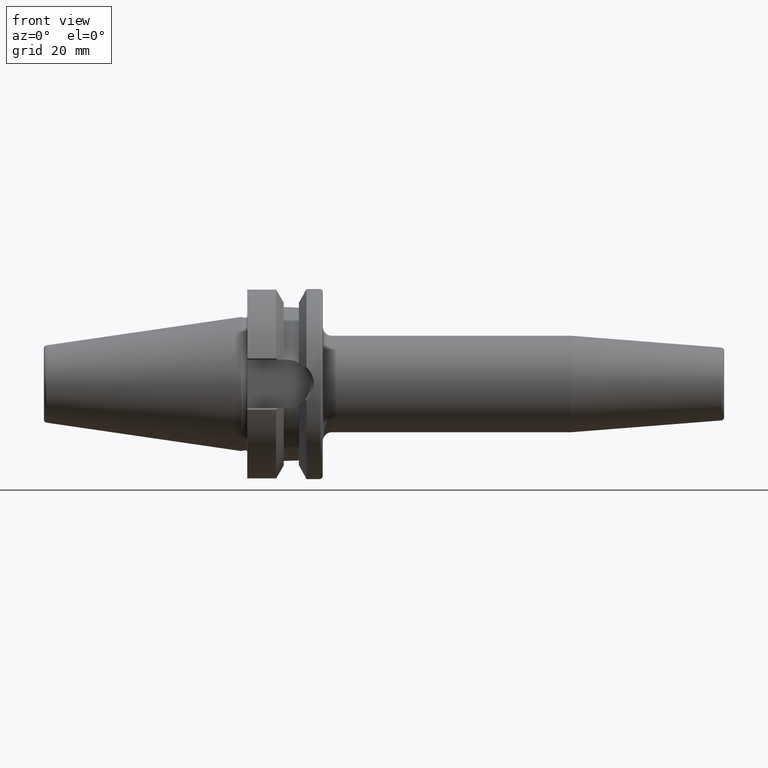
[diagram: clean part render]
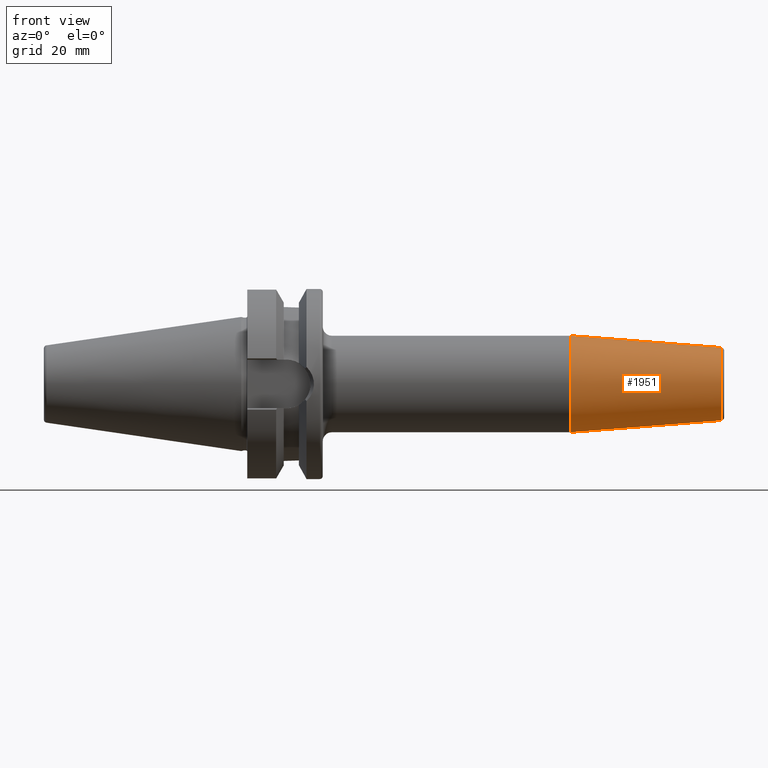
[diagram: same view with one face highlighted and labeled with its STEP entity id]
A machine part, front view. The second image highlights one B-rep face of the part: STEP entity #1951.
In plain terms, the highlighted conical surface has half-angle 4.5 deg.
Its self-contained STEP definition (entity closure, byte-faithful):
#440=DIRECTION('',(-9.969173337331E-1,0.E0,-7.845909572785E-2));
#441=VECTOR('',#440,5.005758888107E1);
#442=CARTESIAN_POINT('',(1.590784590957E2,0.E0,-1.207252684208E1));
#443=LINE('',#442,#441);
#444=DIRECTION('',(-9.969173337331E-1,0.E0,7.845909572785E-2));
#445=VECTOR('',#444,5.005758888107E1);
#446=CARTESIAN_POINT('',(1.590784590957E2,0.E0,1.207252684208E1));
#447=LINE('',#446,#445);
#448=CARTESIAN_POINT('',(1.590784590957E2,0.E0,0.E0));
#449=DIRECTION('',(-1.E0,0.E0,0.E0));
#450=DIRECTION('',(0.E0,0.E0,-1.E0));
#451=AXIS2_PLACEMENT_3D('',#448,#449,#450);
#471=CARTESIAN_POINT('',(1.091751810553E2,0.E0,0.E0));
#472=DIRECTION('',(-1.E0,0.E0,0.E0));
#473=DIRECTION('',(0.E0,0.E0,-1.E0));
#474=AXIS2_PLACEMENT_3D('',#471,#472,#473);
#1224=CARTESIAN_POINT('',(1.590784590957E2,0.E0,-1.207252684208E1));
#1226=VERTEX_POINT('',#1224);
#1227=CARTESIAN_POINT('',(1.091751810553E2,0.E0,-1.6E1));
#1228=VERTEX_POINT('',#1227);
#1254=CARTESIAN_POINT('',(1.590784590957E2,0.E0,1.207252684208E1));
#1256=VERTEX_POINT('',#1254);
#1257=CARTESIAN_POINT('',(1.091751810553E2,0.E0,1.6E1));
#1258=VERTEX_POINT('',#1257);
#1937=CARTESIAN_POINT('',(1.341268200755E2,0.E0,0.E0));
#1938=DIRECTION('',(-1.E0,0.E0,0.E0));
#1939=DIRECTION('',(0.E0,0.E0,-1.E0));
#1940=AXIS2_PLACEMENT_3D('',#1937,#1938,#1939);
#1941=CONICAL_SURFACE('',#1940,1.403626342104E1,4.5E0);
#1943=ORIENTED_EDGE('',*,*,#1942,.T.);
#1945=ORIENTED_EDGE('',*,*,#1944,.T.);
#1947=ORIENTED_EDGE('',*,*,#1946,.F.);
#1948=ORIENTED_EDGE('',*,*,#1930,.F.);
#1949=EDGE_LOOP('',(#1943,#1945,#1947,#1948));
#1950=FACE_OUTER_BOUND('',#1949,.F.);
#1951=ADVANCED_FACE('',(#1950),#1941,.T.);
#452=CIRCLE('',#451,1.207252684208E1);
#475=CIRCLE('',#474,1.6E1);
#1930=EDGE_CURVE('',#1226,#1256,#452,.T.);
#1942=EDGE_CURVE('',#1226,#1228,#443,.T.);
#1944=EDGE_CURVE('',#1228,#1258,#475,.T.);
#1946=EDGE_CURVE('',#1256,#1258,#447,.T.);